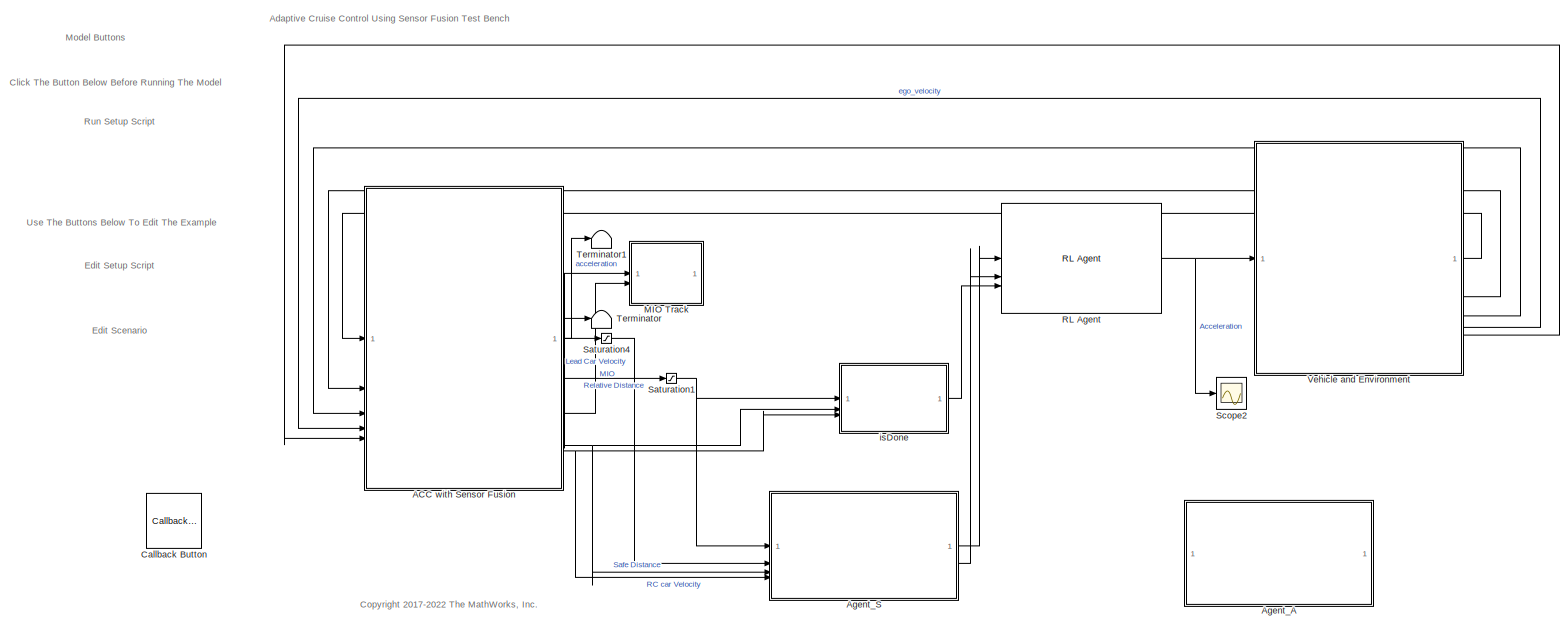
[diagram: root canvas - part 1/1, most of the canvas]
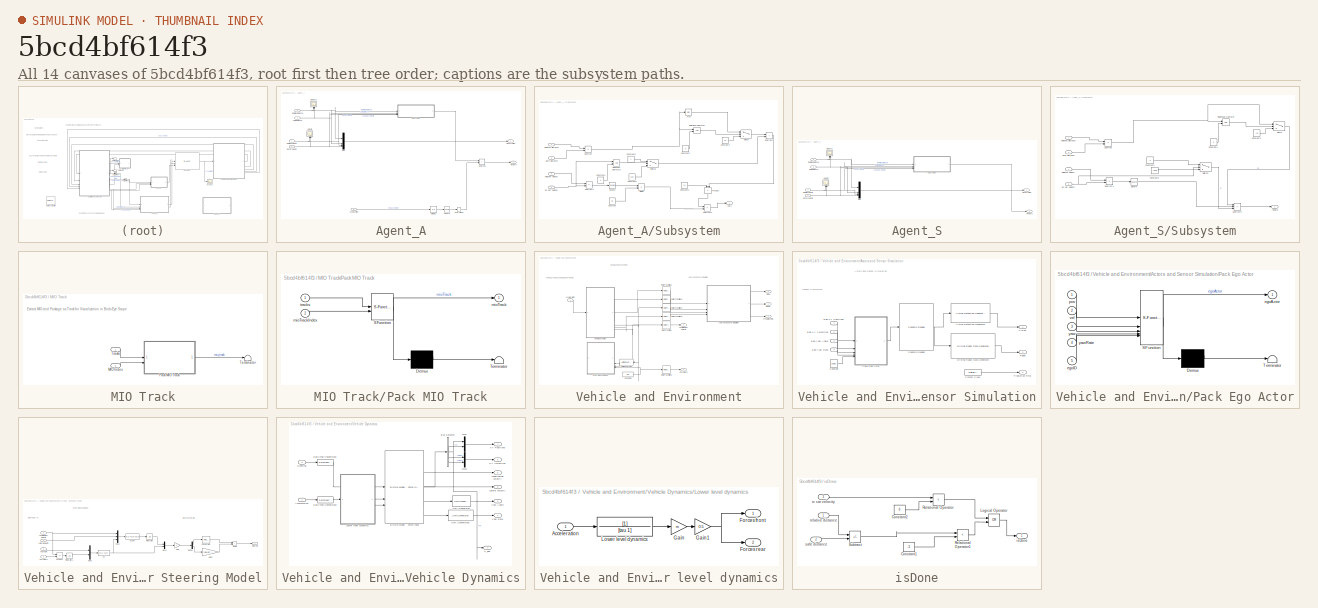
[diagram: thumbnail index - all 14 canvases of the model, root first then tree order]
MODEL slx_5bcd4bf614f3
KIND model
CONFIG AbsTol = auto
CONFIG EnableMultiTasking = off
CONFIG FixedStep = 0.1
CONFIG MaxStep = auto
CONFIG MinStep = auto
CONFIG PostLoadFcn = helperACCSetUp
CONFIG RelTol = 1e-3
CONFIG SampleTimeConstraint = Unconstrained
CONFIG SolverName = FixedStepAuto
CONFIG StartTime = 0.0
CONFIG StopTime = Tf
BLOCK [ModelReference] ACC with Sensor Fusion
  CodeInterface = Top model
  ModelNameDialog = ACCWithSensorFusionMdlRef.slx
  ModelReferenceVersion = 5.10
BLOCK [SubSystem] Agent_A
BLOCK [Inport] Agent_A/Acceleration
  Port = 5
BLOCK [Scope] Agent_A/Distance
  Floating = off
  NameLocation = right
  NumInputPorts = 2
  ScopeSpecificationString = Simulink.scopes.TimeScopeBlockCfg('CurrentConfiguration', extmgr.ConfigurationSet(extmgr.Configuration('Core','General UI',true),extmgr.Configuration('Core','Source UI',true),extmgr.Configuration('Sources','WiredSimulink',true,'DataLoggingVariableName','ScopeData1'),extmgr.Configuration('Visuals','Time Domain',true,'SerializedDisplays',{struct('MinYLimReal','-1.00000','MaxYLimReal','1.00000','YLab...<+1490ch>
BLOCK [Mux] Agent_A/Mux
  DisplayOption = bar
BLOCK [Outport] Agent_A/Observation
BLOCK [Inport] Agent_A/RC car velocity
  Port = 4
BLOCK [Inport] Agent_A/Relative Distance
  Port = 2
BLOCK [Inport] Agent_A/Relative Velocity
BLOCK [Outport] Agent_A/Reward
  Port = 2
BLOCK [Inport] Agent_A/Safe Distance
  Port = 3
BLOCK [Math] Agent_A/Square
  Operator = square
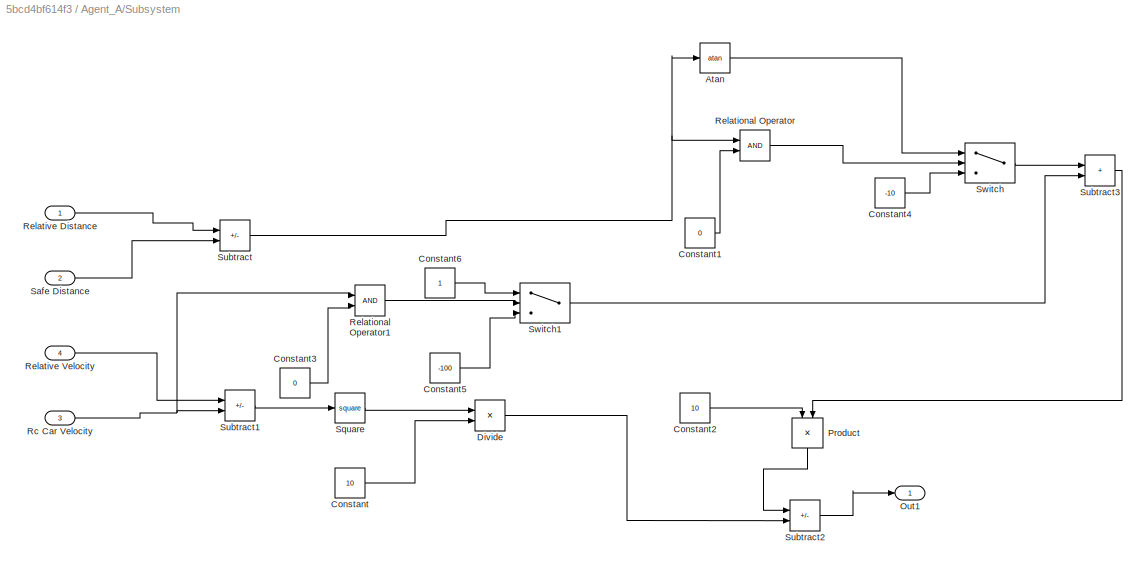
BLOCK [SubSystem] Agent_A/Subsystem
BLOCK [Trigonometry] Agent_A/Subsystem/Atan
  Operator = atan
BLOCK [Constant] Agent_A/Subsystem/Constant
  Value = 10
BLOCK [Constant] Agent_A/Subsystem/Constant1
  Value = 0
BLOCK [Constant] Agent_A/Subsystem/Constant2
  Value = 10
BLOCK [Constant] Agent_A/Subsystem/Constant3
  Value = 0
BLOCK [Constant] Agent_A/Subsystem/Constant4
  Value = -10
BLOCK [Constant] Agent_A/Subsystem/Constant5
  Value = -100
BLOCK [Constant] Agent_A/Subsystem/Constant6
BLOCK [Product] Agent_A/Subsystem/Divide
  Inputs = */
BLOCK [Outport] Agent_A/Subsystem/Out1
BLOCK [Product] Agent_A/Subsystem/Product
  NameLocation = left
BLOCK [Inport] Agent_A/Subsystem/Rc Car Velocity
  Port = 3
BLOCK [RelationalOperator] Agent_A/Subsystem/Relational Operator
  InputSameDT = off
  OutDataTypeStr = boolean
  RndMeth = Simplest
BLOCK [RelationalOperator] Agent_A/Subsystem/Relational Operator1
  InputSameDT = off
  OutDataTypeStr = boolean
  RndMeth = Simplest
BLOCK [Inport] Agent_A/Subsystem/Relative Distance
BLOCK [Inport] Agent_A/Subsystem/Relative Velocity
  Port = 4
BLOCK [Inport] Agent_A/Subsystem/Safe Distance
  Port = 2
BLOCK [Math] Agent_A/Subsystem/Square
  Operator = square
BLOCK [Sum] Agent_A/Subsystem/Subtract
  IconShape = rectangular
  Inputs = +-
BLOCK [Sum] Agent_A/Subsystem/Subtract1
  IconShape = rectangular
  Inputs = +-
BLOCK [Sum] Agent_A/Subsystem/Subtract2
  IconShape = rectangular
  Inputs = +-
BLOCK [Sum] Agent_A/Subsystem/Subtract3
  IconShape = rectangular
BLOCK [Switch] Agent_A/Subsystem/Switch
  Criteria = u2 > Threshold
  InputSameDT = off
  SaturateOnIntegerOverflow = off
BLOCK [Switch] Agent_A/Subsystem/Switch1
  Criteria = u2 > Threshold
  InputSameDT = off
  SaturateOnIntegerOverflow = off
BLOCK [Sum] Agent_A/Subtract2
  IconShape = rectangular
BLOCK [UnaryMinus] Agent_A/Unary Minus
BLOCK [UnitDelay] Agent_A/Unit Delay
  HasFrameUpgradeWarning = on
  SampleTime = -1
BLOCK [Scope] Agent_A/Velocity
  Floating = off
  NameLocation = right
  NumInputPorts = 2
  ScopeSpecificationString = Simulink.scopes.TimeScopeBlockCfg('CurrentConfiguration', extmgr.ConfigurationSet(extmgr.Configuration('Core','General UI',true),extmgr.Configuration('Core','Source UI',true),extmgr.Configuration('Sources','WiredSimulink',true,'DataLoggingVariableName','ScopeData4'),extmgr.Configuration('Visuals','Time Domain',true,'SerializedDisplays',{struct('MinYLimReal','-1.00000','MaxYLimReal','1.00000','YLab...<+1493ch>
BLOCK [SubSystem] Agent_S
BLOCK [Scope] Agent_S/Distance
  Floating = off
  NameLocation = right
  NumInputPorts = 2
  ScopeSpecificationString = Simulink.scopes.TimeScopeBlockCfg('CurrentConfiguration', extmgr.ConfigurationSet(extmgr.Configuration('Core','General UI',true),extmgr.Configuration('Core','Source UI',true),extmgr.Configuration('Sources','WiredSimulink',true,'DataLoggingVariableName','ScopeData1'),extmgr.Configuration('Visuals','Time Domain',true,'SerializedDisplays',{struct('MinYLimReal','-3.37058','MaxYLimReal','81.83526','YLa...<+1495ch>
BLOCK [Mux] Agent_S/Mux
  DisplayOption = bar
BLOCK [Outport] Agent_S/Observation
BLOCK [Inport] Agent_S/RC car velocity
  Port = 4
BLOCK [Inport] Agent_S/Relative Distance
BLOCK [Inport] Agent_S/Relative Velocity
  Port = 2
BLOCK [Outport] Agent_S/Reward
  Port = 2
BLOCK [Inport] Agent_S/Safe Distance
  Port = 3
BLOCK [SubSystem] Agent_S/Subsystem
BLOCK [Constant] Agent_S/Subsystem/Constant1
  Value = 0
BLOCK [Constant] Agent_S/Subsystem/Constant3
  Value = 0
BLOCK [Constant] Agent_S/Subsystem/Constant4
  Value = -15
BLOCK [Constant] Agent_S/Subsystem/Constant5
  Value = -1000
BLOCK [Inport] Agent_S/Subsystem/Rc Car Velocity
  Port = 3
BLOCK [RelationalOperator] Agent_S/Subsystem/Relational Operator
  InputSameDT = off
  OutDataTypeStr = boolean
  RndMeth = Simplest
BLOCK [Inport] Agent_S/Subsystem/Relative Distance
BLOCK [Inport] Agent_S/Subsystem/Relative Velocity
  Port = 4
BLOCK [Inport] Agent_S/Subsystem/Safe Distance
  Port = 2
BLOCK [Math] Agent_S/Subsystem/Square
  Operator = square
BLOCK [Sum] Agent_S/Subsystem/Subtract
  IconShape = rectangular
  Inputs = +-
BLOCK [Sum] Agent_S/Subsystem/Subtract1
  IconShape = rectangular
  Inputs = +-
BLOCK [Sum] Agent_S/Subsystem/Subtract2
  IconShape = rectangular
  Inputs = +-+
BLOCK [Switch] Agent_S/Subsystem/Switch
  Criteria = u2 > Threshold
  InputSameDT = off
  SaturateOnIntegerOverflow = off
BLOCK [Switch] Agent_S/Subsystem/Switch1
  Criteria = u2 > Threshold
  InputSameDT = off
  SaturateOnIntegerOverflow = off
BLOCK [Outport] Agent_S/Subsystem/reward
BLOCK [Scope] Agent_S/Velocity
  Floating = off
  NameLocation = right
  NumInputPorts = 2
  ScopeSpecificationString = Simulink.scopes.TimeScopeBlockCfg('CurrentConfiguration', extmgr.ConfigurationSet(extmgr.Configuration('Core','General UI',true),extmgr.Configuration('Core','Source UI',true),extmgr.Configuration('Sources','WiredSimulink',true,'DataLoggingVariableName','ScopeData4'),extmgr.Configuration('Visuals','Time Domain',true,'SerializedDisplays',{struct('MinYLimReal','-7.78246','MaxYLimReal','19.50434','YLa...<+1497ch>
BLOCK [CallbackButton] Callback Button
  ButtonText = ?
  ClickFcn = exampleName = 'adaptive-cruise-control-with-sensor-fusion.html';\nif license('test','automated_driving_toolbox') && ~isempty(ver('driving'))\n   web(fullfile(docroot,'driving','examples', exampleName));\nelseif license('test','MPC_Toolbox') && ~isempty(ver('mpc'))\n    web(fullfile(docroot,'mpc','ug', exampleName));\nelse\n    web(fullfile('https://www.mathworks.com/help','driving','examples',exampleNam...<+8ch>
BLOCK [SubSystem] MIO Track
BLOCK [Inport] MIO Track/MIO Index
  Port = 2
BLOCK [SubSystem] MIO Track/Pack MIO Track
  ErrorFcn = Stateflow.Translate.translate
  PermitHierarchicalResolution = ExplicitOnly
  SFBlockType = MATLAB Function
  TreatAsAtomicUnit = on
BLOCK [Demux] MIO Track/Pack MIO Track/ Demux 
  Outputs = 1
BLOCK [S-Function] MIO Track/Pack MIO Track/ SFunction 
  EnableBusSupport = on
  FunctionName = sf_sfun
  PortCounts = [2 2]
  SFcnIsStateOwnerBlock = off
  SFunctionDeploymentMode = off
  Tag = Stateflow S-Function 2
BLOCK [Terminator] MIO Track/Pack MIO Track/ Terminator 
BLOCK [Outport] MIO Track/Pack MIO Track/mioTrack
  VectorParamsAs1DForOutWhenUnconnected = off
BLOCK [Inport] MIO Track/Pack MIO Track/mioTrackIndex
  Port = 2
BLOCK [Inport] MIO Track/Pack MIO Track/tracks
BLOCK [Terminator] MIO Track/Terminator
BLOCK [Inport] MIO Track/Tracks
BLOCK [Reference] RL Agent  REF=rllib/RL Agent
  SourceBlock = rllib/RL Agent
  SourceType = RL Agent
BLOCK [Saturate] Saturation1
  LowerLimit = 0
  UpperLimit = 100
BLOCK [Saturate] Saturation4
  LowerLimit = -20
  UpperLimit = 20
BLOCK [Scope] Scope2
  Floating = off
  NumInputPorts = 1
  ScopeSpecificationString = Simulink.scopes.TimeScopeBlockCfg('CurrentConfiguration', extmgr.ConfigurationSet(extmgr.Configuration('Core','General UI',true),extmgr.Configuration('Core','Source UI',true),extmgr.Configuration('Sources','WiredSimulink',true,'DataLoggingVariableName','ScopeData2'),extmgr.Configuration('Visuals','Time Domain',true,'SerializedDisplays',{struct('MinYLimReal','-3.625','MaxYLimReal','2.625','YLabelRe...<+1400ch>
BLOCK [Terminator] Terminator
BLOCK [Terminator] Terminator1
BLOCK [SubSystem] Vehicle and Environment
BLOCK [Inport] Vehicle and Environment/Acceleration
  OutDataTypeStr = double
  PortDimensions = 1
BLOCK [SubSystem] Vehicle and Environment/Actors and Sensor Simulation
BLOCK [Constant] Vehicle and Environment/Actors and Sensor Simulation/Constant
  Value = egoID
BLOCK [Reference] Vehicle and Environment/Actors and Sensor Simulation/Driving Radar Data Generator  REF=drivingscenarioandsensors/Driving Radar Data Generator
  SourceBlock = drivingscenarioandsensors/Driving Radar Data Generator
  SourceType = drivingRadarDataGenerator
BLOCK [Inport] Vehicle and Environment/Actors and Sensor Simulation/Ego XY Positions
BLOCK [Inport] Vehicle and Environment/Actors and Sensor Simulation/Ego XY Velocities
  Port = 2
BLOCK [Inport] Vehicle and Environment/Actors and Sensor Simulation/Ego Yaw Angle
  Port = 3
BLOCK [Inport] Vehicle and Environment/Actors and Sensor Simulation/Ego Yaw Rate
  Port = 4
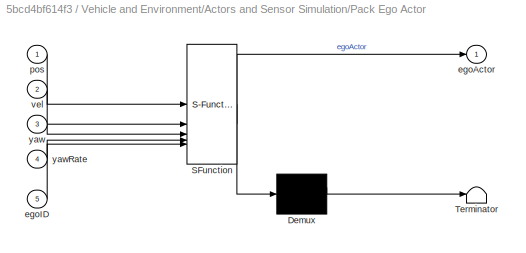
BLOCK [SubSystem] Vehicle and Environment/Actors and Sensor Simulation/Pack Ego Actor
  ErrorFcn = Stateflow.Translate.translate
  PermitHierarchicalResolution = ExplicitOnly
  SFBlockType = MATLAB Function
  TreatAsAtomicUnit = on
BLOCK [Demux] Vehicle and Environment/Actors and Sensor Simulation/Pack Ego Actor/ Demux 
  Outputs = 1
BLOCK [S-Function] Vehicle and Environment/Actors and Sensor Simulation/Pack Ego Actor/ SFunction 
  EnableBusSupport = on
  FunctionName = sf_sfun
  PortCounts = [5 2]
  SFcnIsStateOwnerBlock = off
  SFunctionDeploymentMode = off
  Tag = Stateflow S-Function 5
BLOCK [Terminator] Vehicle and Environment/Actors and Sensor Simulation/Pack Ego Actor/ Terminator 
BLOCK [Outport] Vehicle and Environment/Actors and Sensor Simulation/Pack Ego Actor/egoActor
  VectorParamsAs1DForOutWhenUnconnected = off
BLOCK [Inport] Vehicle and Environment/Actors and Sensor Simulation/Pack Ego Actor/egoID
  Port = 5
BLOCK [Inport] Vehicle and Environment/Actors and Sensor Simulation/Pack Ego Actor/pos
BLOCK [Inport] Vehicle and Environment/Actors and Sensor Simulation/Pack Ego Actor/vel
  Port = 2
BLOCK [Inport] Vehicle and Environment/Actors and Sensor Simulation/Pack Ego Actor/yaw
  Port = 3
BLOCK [Inport] Vehicle and Environment/Actors and Sensor Simulation/Pack Ego Actor/yawRate
  Port = 4
BLOCK [Outport] Vehicle and Environment/Actors and Sensor Simulation/Prediction Time
  Port = 3
  VectorParamsAs1DForOutWhenUnconnected = off
BLOCK [Outport] Vehicle and Environment/Actors and Sensor Simulation/Radar
  Port = 2
  VectorParamsAs1DForOutWhenUnconnected = off
BLOCK [Reference] Vehicle and Environment/Actors and Sensor Simulation/Scenario Reader  REF=drivingscenarioandsensors/Scenario Reader
  SourceBlock = drivingscenarioandsensors/Scenario Reader
  SourceType = driving.scenario.internal.ScenarioReader
BLOCK [DigitalClock] Vehicle and Environment/Actors and Sensor Simulation/System Clock
  SampleTime = Ts
BLOCK [Outport] Vehicle and Environment/Actors and Sensor Simulation/Vision
  VectorParamsAs1DForOutWhenUnconnected = off
BLOCK [Reference] Vehicle and Environment/Actors and Sensor Simulation/Vision Detection Generator  REF=drivingscenarioandsensors/Vision Detection Generator
  SourceBlock = drivingscenarioandsensors/Vision Detection Generator
  SourceType = visionDetectionGenerator
BLOCK [Constant] Vehicle and Environment/Constant1
  Value = 1/R
BLOCK [Outport] Vehicle and Environment/Curvature
  Port = 5
  VectorParamsAs1DForOutWhenUnconnected = off
BLOCK [SubSystem] Vehicle and Environment/Driver Steering Model
BLOCK [Inport] Vehicle and Environment/Driver Steering Model/Curvature
  Port = 4
BLOCK [Demux] Vehicle and Environment/Driver Steering Model/Demux
  Outputs = 2
BLOCK [Gain] Vehicle and Environment/Driver Steering Model/Gain
  Gain = -1
BLOCK [Gain] Vehicle and Environment/Driver Steering Model/Gain2
  Gain = yawerr_gain
BLOCK [Integrator] Vehicle and Environment/Driver Steering Model/Integrator
BLOCK [Integrator] Vehicle and Environment/Driver Steering Model/Integrator1
BLOCK [Inport] Vehicle and Environment/Driver Steering Model/Lateral Velocity
BLOCK [Inport] Vehicle and Environment/Driver Steering Model/Longitudinal Velocity
  Port = 2
BLOCK [Mux] Vehicle and Environment/Driver Steering Model/Mux1
  DisplayOption = bar
  Inputs = 3
BLOCK [Mux] Vehicle and Environment/Driver Steering Model/Mux2
  DisplayOption = bar
  Inputs = 2
BLOCK [Mux] Vehicle and Environment/Driver Steering Model/Mux3
  DisplayOption = bar
  Inputs = 2
BLOCK [Reference] Vehicle and Environment/Driver Steering Model/PID Controller  REF=slpidlib/PID Controller
  SourceBlock = slpidlib/PID Controller
  SourceType = PID 1dof
BLOCK [Product] Vehicle and Environment/Driver Steering Model/Product
BLOCK [Outport] Vehicle and Environment/Driver Steering Model/Steering
  VectorParamsAs1DForOutWhenUnconnected = off
BLOCK [Sum] Vehicle and Environment/Driver Steering Model/Sum5
  IconShape = rectangular
BLOCK [Inport] Vehicle and Environment/Driver Steering Model/Yaw Angle
  Port = 3
  Unit = rad
BLOCK [Fcn] Vehicle and Environment/Driver Steering Model/e1dot
  Expr = u(1)*u(3)+u(2)
BLOCK [Fcn] Vehicle and Environment/Driver Steering Model/e2
  Expr = u(1)-u(2)
BLOCK [Outport] Vehicle and Environment/Longitudinal Velocity
  Port = 4
  VectorParamsAs1DForOutWhenUnconnected = off
BLOCK [Outport] Vehicle and Environment/Prediction Time
  Port = 3
  VectorParamsAs1DForOutWhenUnconnected = off
BLOCK [Outport] Vehicle and Environment/Radar
  Port = 2
  VectorParamsAs1DForOutWhenUnconnected = off
BLOCK [RateTransition] Vehicle and Environment/Rate Transition
  OutPortSampleTime = Ts
BLOCK [RateTransition] Vehicle and Environment/Rate Transition1
  OutPortSampleTime = Ts
BLOCK [RateTransition] Vehicle and Environment/Rate Transition2
  OutPortSampleTime = Ts
BLOCK [RateTransition] Vehicle and Environment/Rate Transition3
  OutPortSampleTime = Ts
BLOCK [RateTransition] Vehicle and Environment/Rate Transition4
  OutPortSampleTime = Ts
BLOCK [RateTransition] Vehicle and Environment/Rate Transition5
  OutPortSampleTime = Ts
BLOCK [UnitConversion] Vehicle and Environment/Unit Conversion
  NameLocation = top
BLOCK [SubSystem] Vehicle and Environment/Vehicle Dynamics
  VariantControl = Variant2
BLOCK [Inport] Vehicle and Environment/Vehicle Dynamics/Acceleration
  Unit = m/s^2
BLOCK [Reference] Vehicle and Environment/Vehicle Dynamics/Bicycle Model - Force Input  REF=autolibshared/Bicycle Model - Force Input
  SourceBlock = autolibshared/Bicycle Model - Force Input
  SourceType = Vehicle Body 3DOF Lateral
BLOCK [BusSelector] Vehicle and Environment/Vehicle Dynamics/Bus Selector
  OutputSignals = InertFrm.FrntAxl.Disp.X,InertFrm.FrntAxl.Disp.Y,InertFrm.FrntAxl.Vel.Xdot,InertFrm.FrntAxl.Vel.Ydot
BLOCK [DataTypeConversion] Vehicle and Environment/Vehicle Dynamics/Data Type Conversion1
  RndMeth = Floor
  SaturateOnIntegerOverflow = off
BLOCK [DataTypeConversion] Vehicle and Environment/Vehicle Dynamics/Data Type Conversion2
  RndMeth = Floor
  SaturateOnIntegerOverflow = off
BLOCK [Outport] Vehicle and Environment/Vehicle Dynamics/Lateral velocity
  Port = 6
  VectorParamsAs1DForOutWhenUnconnected = off
BLOCK [Outport] Vehicle and Environment/Vehicle Dynamics/Longitudinal velocity
  Port = 5
  VectorParamsAs1DForOutWhenUnconnected = off
BLOCK [SubSystem] Vehicle and Environment/Vehicle Dynamics/Lower level dynamics
BLOCK [Inport] Vehicle and Environment/Vehicle Dynamics/Lower level dynamics/Acceleration
BLOCK [Outport] Vehicle and Environment/Vehicle Dynamics/Lower level dynamics/Forces front
  VectorParamsAs1DForOutWhenUnconnected = off
BLOCK [Outport] Vehicle and Environment/Vehicle Dynamics/Lower level dynamics/Forces rear
  Port = 2
  VectorParamsAs1DForOutWhenUnconnected = off
BLOCK [Gain] Vehicle and Environment/Vehicle Dynamics/Lower level dynamics/Gain
  Gain = m
BLOCK [Gain] Vehicle and Environment/Vehicle Dynamics/Lower level dynamics/Gain1
  Gain = 0.5
BLOCK [TransferFcn] Vehicle and Environment/Vehicle Dynamics/Lower level dynamics/Lower level dynamics
  Denominator = [tau 1]
BLOCK [Mux] Vehicle and Environment/Vehicle Dynamics/Mux
  DisplayOption = bar
  Inputs = 2
BLOCK [Mux] Vehicle and Environment/Vehicle Dynamics/Mux1
  DisplayOption = bar
  Inputs = 2
BLOCK [Inport] Vehicle and Environment/Vehicle Dynamics/Steering
  Port = 2
  Unit = rad
BLOCK [UnitConversion] Vehicle and Environment/Vehicle Dynamics/Unit Conversion
BLOCK [UnitConversion] Vehicle and Environment/Vehicle Dynamics/Unit Conversion1
BLOCK [Outport] Vehicle and Environment/Vehicle Dynamics/XY Positions
  Unit = m
  VectorParamsAs1DForOutWhenUnconnected = off
BLOCK [Outport] Vehicle and Environment/Vehicle Dynamics/XY Velocities
  Port = 2
  Unit = m/s
  VectorParamsAs1DForOutWhenUnconnected = off
BLOCK [Outport] Vehicle and Environment/Vehicle Dynamics/X_pos
  Port = 7
  Unit = degree/s
  VectorParamsAs1DForOutWhenUnconnected = off
BLOCK [Outport] Vehicle and Environment/Vehicle Dynamics/Yaw Angle
  Port = 3
  Unit = deg
  VectorParamsAs1DForOutWhenUnconnected = off
BLOCK [Outport] Vehicle and Environment/Vehicle Dynamics/Yaw Rate
  Port = 4
  Unit = degree/s
  VectorParamsAs1DForOutWhenUnconnected = off
BLOCK [Outport] Vehicle and Environment/Vision
  VectorParamsAs1DForOutWhenUnconnected = off
BLOCK [SubSystem] isDone
BLOCK [Constant] isDone/Constant1
  Value = -5
BLOCK [Constant] isDone/Constant2
  Value = 0
BLOCK [Logic] isDone/Logical Operator
  AllPortsSameDT = off
  Operator = OR
  OutDataTypeStr = boolean
BLOCK [RelationalOperator] isDone/Relational Operator
  InputSameDT = off
  Operator = <
  OutDataTypeStr = boolean
  RndMeth = Simplest
BLOCK [RelationalOperator] isDone/Relational Operator1
  InputSameDT = off
  Operator = <
  OutDataTypeStr = boolean
  RndMeth = Simplest
BLOCK [Sum] isDone/Subtract
  IconShape = rectangular
  Inputs = +-
BLOCK [Outport] isDone/isDone
BLOCK [Inport] isDone/rc car velocity
  Port = 3
BLOCK [Inport] isDone/relative distance
BLOCK [Inport] isDone/safe distance
  Port = 2
ANNOTATION (root): Edit Scenario
ANNOTATION (root): Edit Setup Script
ANNOTATION (root): Run Setup Script
ANNOTATION (root): Adaptive Cruise Control Using Sensor Fusion Test Bench
ANNOTATION (root): Click The Button Below Before Running The Model
ANNOTATION (root): <copyright redacted>
ANNOTATION (root): Model Buttons
ANNOTATION (root): Use The Buttons Below To Edit The Example
ANNOTATION MIO Track: Extract MIO and Package as Track for Visualization in Birds Eye Scope
ANNOTATION Vehicle and Environment: Vehicle and Environment
ANNOTATION Vehicle and Environment: Actors and Sensor Simulation
ANNOTATION Vehicle and Environment: Vehicle Dynamics and Global Coordinates
ANNOTATION Vehicle and Environment/Actors and Sensor Simulation: Actors and Sensor Simulation
ANNOTATION Vehicle and Environment/Actors and Sensor Simulation: Sensor Simulation
ANNOTATION Vehicle and Environment/Driver Steering Model: Driver Steering Model
ANNOTATION Vehicle and Environment/Driver Steering Model: Steering Controller
ANNOTATION Vehicle and Environment/Driver Steering Model: Steering Error
LINE ACC with Sensor Fusion:1 -> Terminator1:1
NET ACC with Sensor Fusion:2 -> MIO Track:1, Terminator:1
LINE ACC with Sensor Fusion:3 -> MIO Track:2
LINE ACC with Sensor Fusion:4 -> Saturation4:1
LINE ACC with Sensor Fusion:5 -> Saturation1:1
NET ACC with Sensor Fusion:6 -> Agent_S:3, isDone:2
NET ACC with Sensor Fusion:7 -> Agent_S:4, isDone:3
LINE Agent_A/Acceleration:1 -> Agent_A/Unit Delay:1
LINE Agent_A/Mux:1 -> Agent_A/Observation:1
NET Agent_A/RC car velocity:1 -> Agent_A/Mux:4, Agent_A/Subsystem:3, Agent_A/Velocity:2
NET Agent_A/Relative Distance:1 -> Agent_A/Distance:1, Agent_A/Mux:1, Agent_A/Subsystem:1
NET Agent_A/Relative Velocity:1 -> Agent_A/Mux:3, Agent_A/Subsystem:4, Agent_A/Velocity:1
NET Agent_A/Safe Distance:1 -> Agent_A/Distance:2, Agent_A/Mux:2, Agent_A/Subsystem:2
LINE Agent_A/Square:1 -> Agent_A/Unary Minus:1
LINE Agent_A/Subsystem/Atan:1 -> Agent_A/Subsystem/Switch:1
LINE Agent_A/Subsystem/Constant1:1 -> Agent_A/Subsystem/Relational Operator:2
LINE Agent_A/Subsystem/Constant2:1 -> Agent_A/Subsystem/Product:1
LINE Agent_A/Subsystem/Constant3:1 -> Agent_A/Subsystem/Relational Operator1:2
LINE Agent_A/Subsystem/Constant4:1 -> Agent_A/Subsystem/Switch:3
LINE Agent_A/Subsystem/Constant5:1 -> Agent_A/Subsystem/Switch1:3
LINE Agent_A/Subsystem/Constant6:1 -> Agent_A/Subsystem/Switch1:1
LINE Agent_A/Subsystem/Constant:1 -> Agent_A/Subsystem/Divide:2
LINE Agent_A/Subsystem/Divide:1 -> Agent_A/Subsystem/Subtract2:2
LINE Agent_A/Subsystem/Product:1 -> Agent_A/Subsystem/Subtract2:1
NET Agent_A/Subsystem/Rc Car Velocity:1 -> Agent_A/Subsystem/Relational Operator1:1, Agent_A/Subsystem/Subtract1:2
LINE Agent_A/Subsystem/Relational Operator1:1 -> Agent_A/Subsystem/Switch1:2
LINE Agent_A/Subsystem/Relational Operator:1 -> Agent_A/Subsystem/Switch:2
LINE Agent_A/Subsystem/Relative Distance:1 -> Agent_A/Subsystem/Subtract:1
LINE Agent_A/Subsystem/Relative Velocity:1 -> Agent_A/Subsystem/Subtract1:1
LINE Agent_A/Subsystem/Safe Distance:1 -> Agent_A/Subsystem/Subtract:2
LINE Agent_A/Subsystem/Square:1 -> Agent_A/Subsystem/Divide:1
LINE Agent_A/Subsystem/Subtract1:1 -> Agent_A/Subsystem/Square:1
LINE Agent_A/Subsystem/Subtract2:1 -> Agent_A/Subsystem/Out1:1
LINE Agent_A/Subsystem/Subtract3:1 -> Agent_A/Subsystem/Product:2
NET Agent_A/Subsystem/Subtract:1 -> Agent_A/Subsystem/Atan:1, Agent_A/Subsystem/Relational Operator:1
LINE Agent_A/Subsystem/Switch1:1 -> Agent_A/Subsystem/Subtract3:2
LINE Agent_A/Subsystem/Switch:1 -> Agent_A/Subsystem/Subtract3:1
LINE Agent_A/Subsystem:1 -> Agent_A/Subtract2:1
LINE Agent_A/Subtract2:1 -> Agent_A/Reward:1
LINE Agent_A/Unary Minus:1 -> Agent_A/Subtract2:2
LINE Agent_A/Unit Delay:1 -> Agent_A/Square:1
LINE Agent_S/Mux:1 -> Agent_S/Observation:1
NET Agent_S/RC car velocity:1 -> Agent_S/Mux:4, Agent_S/Subsystem:3, Agent_S/Velocity:2
NET Agent_S/Relative Distance:1 -> Agent_S/Distance:1, Agent_S/Mux:1, Agent_S/Subsystem:1
NET Agent_S/Relative Velocity:1 -> Agent_S/Mux:3, Agent_S/Subsystem:4, Agent_S/Velocity:1
NET Agent_S/Safe Distance:1 -> Agent_S/Distance:2, Agent_S/Mux:2, Agent_S/Subsystem:2
LINE Agent_S/Subsystem/Constant1:1 -> Agent_S/Subsystem/Relational Operator:2
LINE Agent_S/Subsystem/Constant3:1 -> Agent_S/Subsystem/Switch1:1
LINE Agent_S/Subsystem/Constant4:1 -> Agent_S/Subsystem/Switch:3
LINE Agent_S/Subsystem/Constant5:1 -> Agent_S/Subsystem/Switch1:3
NET Agent_S/Subsystem/Rc Car Velocity:1 -> Agent_S/Subsystem/Subtract1:2, Agent_S/Subsystem/Switch1:2
LINE Agent_S/Subsystem/Relational Operator:1 -> Agent_S/Subsystem/Switch:2
LINE Agent_S/Subsystem/Relative Distance:1 -> Agent_S/Subsystem/Subtract:1
LINE Agent_S/Subsystem/Relative Velocity:1 -> Agent_S/Subsystem/Subtract1:1
LINE Agent_S/Subsystem/Safe Distance:1 -> Agent_S/Subsystem/Subtract:2
LINE Agent_S/Subsystem/Square:1 -> Agent_S/Subsystem/Subtract2:2
LINE Agent_S/Subsystem/Subtract1:1 -> Agent_S/Subsystem/Square:1
LINE Agent_S/Subsystem/Subtract2:1 -> Agent_S/Subsystem/reward:1
NET Agent_S/Subsystem/Subtract:1 -> Agent_S/Subsystem/Relational Operator:1, Agent_S/Subsystem/Switch:1
LINE Agent_S/Subsystem/Switch1:1 -> Agent_S/Subsystem/Subtract2:3
LINE Agent_S/Subsystem/Switch:1 -> Agent_S/Subsystem/Subtract2:1
LINE Agent_S/Subsystem:1 -> Agent_S/Reward:1
LINE Agent_S:1 -> RL Agent:1
LINE Agent_S:2 -> RL Agent:2
LINE MIO Track/MIO Index:1 -> MIO Track/Pack MIO Track:2
LINE MIO Track/Pack MIO Track:1 -> MIO Track/Terminator:1
LINE MIO Track/Tracks:1 -> MIO Track/Pack MIO Track:1
NET RL Agent:1 -> Scope2:1, Vehicle and Environment:1
NET Saturation1:1 -> Agent_S:1, isDone:1
LINE Saturation4:1 -> Agent_S:2
LINE Vehicle and Environment/Acceleration:1 -> Vehicle and Environment/Vehicle Dynamics:1
LINE Vehicle and Environment/Actors and Sensor Simulation/Constant:1 -> Vehicle and Environment/Actors and Sensor Simulation/Pack Ego Actor:5
LINE Vehicle and Environment/Actors and Sensor Simulation/Driving Radar Data Generator:1 -> Vehicle and Environment/Actors and Sensor Simulation/Radar:1
LINE Vehicle and Environment/Actors and Sensor Simulation/Ego XY Positions:1 -> Vehicle and Environment/Actors and Sensor Simulation/Pack Ego Actor:1
LINE Vehicle and Environment/Actors and Sensor Simulation/Ego XY Velocities:1 -> Vehicle and Environment/Actors and Sensor Simulation/Pack Ego Actor:2
LINE Vehicle and Environment/Actors and Sensor Simulation/Ego Yaw Angle:1 -> Vehicle and Environment/Actors and Sensor Simulation/Pack Ego Actor:3
LINE Vehicle and Environment/Actors and Sensor Simulation/Ego Yaw Rate:1 -> Vehicle and Environment/Actors and Sensor Simulation/Pack Ego Actor:4
LINE Vehicle and Environment/Actors and Sensor Simulation/Pack Ego Actor:1 -> Vehicle and Environment/Actors and Sensor Simulation/Scenario Reader:1
NET Vehicle and Environment/Actors and Sensor Simulation/Scenario Reader:1 -> Vehicle and Environment/Actors and Sensor Simulation/Driving Radar Data Generator:1, Vehicle and Environment/Actors and Sensor Simulation/Vision Detection Generator:1
LINE Vehicle and Environment/Actors and Sensor Simulation/System Clock:1 -> Vehicle and Environment/Actors and Sensor Simulation/Prediction Time:1
LINE Vehicle and Environment/Actors and Sensor Simulation/Vision Detection Generator:1 -> Vehicle and Environment/Actors and Sensor Simulation/Vision:1
LINE Vehicle and Environment/Actors and Sensor Simulation:1 -> Vehicle and Environment/Vision:1
LINE Vehicle and Environment/Actors and Sensor Simulation:2 -> Vehicle and Environment/Radar:1
LINE Vehicle and Environment/Actors and Sensor Simulation:3 -> Vehicle and Environment/Prediction Time:1
NET Vehicle and Environment/Constant1:1 -> Vehicle and Environment/Driver Steering Model:4, Vehicle and Environment/Rate Transition2:1
LINE Vehicle and Environment/Driver Steering Model/Curvature:1 -> Vehicle and Environment/Driver Steering Model/Product:2
LINE Vehicle and Environment/Driver Steering Model/Demux:1 -> Vehicle and Environment/Driver Steering Model/PID Controller:1
LINE Vehicle and Environment/Driver Steering Model/Demux:2 -> Vehicle and Environment/Driver Steering Model/Gain2:1
LINE Vehicle and Environment/Driver Steering Model/Gain2:1 -> Vehicle and Environment/Driver Steering Model/Sum5:2
LINE Vehicle and Environment/Driver Steering Model/Gain:1 -> Vehicle and Environment/Driver Steering Model/Demux:1
LINE Vehicle and Environment/Driver Steering Model/Integrator1:1 -> Vehicle and Environment/Driver Steering Model/Mux2:2
LINE Vehicle and Environment/Driver Steering Model/Integrator:1 -> Vehicle and Environment/Driver Steering Model/Mux3:1
LINE Vehicle and Environment/Driver Steering Model/Lateral Velocity:1 -> Vehicle and Environment/Driver Steering Model/Mux1:2
NET Vehicle and Environment/Driver Steering Model/Longitudinal Velocity:1 -> Vehicle and Environment/Driver Steering Model/Mux1:1, Vehicle and Environment/Driver Steering Model/Product:1
LINE Vehicle and Environment/Driver Steering Model/Mux1:1 -> Vehicle and Environment/Driver Steering Model/e1dot:1
LINE Vehicle and Environment/Driver Steering Model/Mux2:1 -> Vehicle and Environment/Driver Steering Model/e2:1
LINE Vehicle and Environment/Driver Steering Model/Mux3:1 -> Vehicle and Environment/Driver Steering Model/Gain:1
LINE Vehicle and Environment/Driver Steering Model/PID Controller:1 -> Vehicle and Environment/Driver Steering Model/Sum5:1
LINE Vehicle and Environment/Driver Steering Model/Product:1 -> Vehicle and Environment/Driver Steering Model/Integrator1:1
LINE Vehicle and Environment/Driver Steering Model/Sum5:1 -> Vehicle and Environment/Driver Steering Model/Steering:1
LINE Vehicle and Environment/Driver Steering Model/Yaw Angle:1 -> Vehicle and Environment/Driver Steering Model/Mux2:1
LINE Vehicle and Environment/Driver Steering Model/e1dot:1 -> Vehicle and Environment/Driver Steering Model/Integrator:1
NET Vehicle and Environment/Driver Steering Model/e2:1 -> Vehicle and Environment/Driver Steering Model/Mux1:3, Vehicle and Environment/Driver Steering Model/Mux3:2
LINE Vehicle and Environment/Rate Transition1:1 -> Vehicle and Environment/Actors and Sensor Simulation:1
LINE Vehicle and Environment/Rate Transition2:1 -> Vehicle and Environment/Curvature:1
LINE Vehicle and Environment/Rate Transition3:1 -> Vehicle and Environment/Actors and Sensor Simulation:2
LINE Vehicle and Environment/Rate Transition4:1 -> Vehicle and Environment/Actors and Sensor Simulation:3
LINE Vehicle and Environment/Rate Transition5:1 -> Vehicle and Environment/Actors and Sensor Simulation:4
LINE Vehicle and Environment/Rate Transition:1 -> Vehicle and Environment/Longitudinal Velocity:1
LINE Vehicle and Environment/Unit Conversion:1 -> Vehicle and Environment/Driver Steering Model:3
LINE Vehicle and Environment/Vehicle Dynamics/Acceleration:1 -> Vehicle and Environment/Vehicle Dynamics/Data Type Conversion2:1
LINE Vehicle and Environment/Vehicle Dynamics/Bicycle Model - Force Input:1 -> Vehicle and Environment/Vehicle Dynamics/Bus Selector:1
LINE Vehicle and Environment/Vehicle Dynamics/Bicycle Model - Force Input:2 -> Vehicle and Environment/Vehicle Dynamics/Longitudinal velocity:1
LINE Vehicle and Environment/Vehicle Dynamics/Bicycle Model - Force Input:3 -> Vehicle and Environment/Vehicle Dynamics/Lateral velocity:1
LINE Vehicle and Environment/Vehicle Dynamics/Bicycle Model - Force Input:4 -> Vehicle and Environment/Vehicle Dynamics/Unit Conversion:1
LINE Vehicle and Environment/Vehicle Dynamics/Bicycle Model - Force Input:5 -> Vehicle and Environment/Vehicle Dynamics/Unit Conversion1:1
NET Vehicle and Environment/Vehicle Dynamics/Bus Selector:1 -> Vehicle and Environment/Vehicle Dynamics/Mux:1, Vehicle and Environment/Vehicle Dynamics/X_pos:1
LINE Vehicle and Environment/Vehicle Dynamics/Bus Selector:2 -> Vehicle and Environment/Vehicle Dynamics/Mux:2
LINE Vehicle and Environment/Vehicle Dynamics/Bus Selector:3 -> Vehicle and Environment/Vehicle Dynamics/Mux1:1
LINE Vehicle and Environment/Vehicle Dynamics/Bus Selector:4 -> Vehicle and Environment/Vehicle Dynamics/Mux1:2
LINE Vehicle and Environment/Vehicle Dynamics/Data Type Conversion1:1 -> Vehicle and Environment/Vehicle Dynamics/Bicycle Model - Force Input:1
LINE Vehicle and Environment/Vehicle Dynamics/Data Type Conversion2:1 -> Vehicle and Environment/Vehicle Dynamics/Lower level dynamics:1
LINE Vehicle and Environment/Vehicle Dynamics/Lower level dynamics/Acceleration:1 -> Vehicle and Environment/Vehicle Dynamics/Lower level dynamics/Lower level dynamics:1
NET Vehicle and Environment/Vehicle Dynamics/Lower level dynamics/Gain1:1 -> Vehicle and Environment/Vehicle Dynamics/Lower level dynamics/Forces front:1, Vehicle and Environment/Vehicle Dynamics/Lower level dynamics/Forces rear:1
LINE Vehicle and Environment/Vehicle Dynamics/Lower level dynamics/Gain:1 -> Vehicle and Environment/Vehicle Dynamics/Lower level dynamics/Gain1:1
LINE Vehicle and Environment/Vehicle Dynamics/Lower level dynamics/Lower level dynamics:1 -> Vehicle and Environment/Vehicle Dynamics/Lower level dynamics/Gain:1
LINE Vehicle and Environment/Vehicle Dynamics/Lower level dynamics:1 -> Vehicle and Environment/Vehicle Dynamics/Bicycle Model - Force Input:2
LINE Vehicle and Environment/Vehicle Dynamics/Lower level dynamics:2 -> Vehicle and Environment/Vehicle Dynamics/Bicycle Model - Force Input:3
LINE Vehicle and Environment/Vehicle Dynamics/Mux1:1 -> Vehicle and Environment/Vehicle Dynamics/XY Velocities:1
LINE Vehicle and Environment/Vehicle Dynamics/Mux:1 -> Vehicle and Environment/Vehicle Dynamics/XY Positions:1
LINE Vehicle and Environment/Vehicle Dynamics/Steering:1 -> Vehicle and Environment/Vehicle Dynamics/Data Type Conversion1:1
LINE Vehicle and Environment/Vehicle Dynamics/Unit Conversion1:1 -> Vehicle and Environment/Vehicle Dynamics/Yaw Rate:1
LINE Vehicle and Environment/Vehicle Dynamics/Unit Conversion:1 -> Vehicle and Environment/Vehicle Dynamics/Yaw Angle:1
LINE Vehicle and Environment/Vehicle Dynamics:1 -> Vehicle and Environment/Rate Transition1:1
LINE Vehicle and Environment/Vehicle Dynamics:2 -> Vehicle and Environment/Rate Transition3:1
NET Vehicle and Environment/Vehicle Dynamics:3 -> Vehicle and Environment/Rate Transition4:1, Vehicle and Environment/Unit Conversion:1
LINE Vehicle and Environment/Vehicle Dynamics:4 -> Vehicle and Environment/Rate Transition5:1
NET Vehicle and Environment/Vehicle Dynamics:5 -> Vehicle and Environment/Driver Steering Model:2, Vehicle and Environment/Rate Transition:1
LINE Vehicle and Environment:1 -> ACC with Sensor Fusion:1
LINE Vehicle and Environment:2 -> ACC with Sensor Fusion:2
LINE Vehicle and Environment:3 -> ACC with Sensor Fusion:3
LINE Vehicle and Environment:4 -> ACC with Sensor Fusion:4
LINE Vehicle and Environment:5 -> ACC with Sensor Fusion:5
LINE isDone/Constant1:1 -> isDone/Relational Operator1:2
LINE isDone/Constant2:1 -> isDone/Relational Operator:2
LINE isDone/Logical Operator:1 -> isDone/isDone:1
LINE isDone/Relational Operator1:1 -> isDone/Logical Operator:2
LINE isDone/Relational Operator:1 -> isDone/Logical Operator:1
LINE isDone/Subtract:1 -> isDone/Relational Operator1:1
LINE isDone/rc car velocity:1 -> isDone/Relational Operator:1
LINE isDone/relative distance:1 -> isDone/Subtract:1
LINE isDone/safe distance:1 -> isDone/Subtract:2
LINE isDone:1 -> RL Agent:3
note: NET lines group one-source signal fan-out (src -> all destinations, sorted); 1:1 wires keep LINE
CHART MIO Track/Pack MIO Track states=1 transitions=1
  STATE_LABEL 'eML_blk_kernel()'
  STATE_LABEL 'SCRIPT:\nfunction mioTrack = fcn(tracks, mioTrackIndex)\n% Extract MIO track and package for visualization in Birds Eye Scope\n\nmioTrack = tracks;\n\nif mioTrackIndex > 0\n    % First track represents MIO\n    mioTrack.NumTracks = 1;\n    mioTrack.Tracks(1) = tracks.Tracks(mioTrackIndex);\nelse\n    % No valid MIO track\n    mioTrack.NumTracks = 0;\nend\n'
CHART Vehicle and Environment/Actors and Sensor Simulation/Pack Ego Actor states=1 transitions=1
  STATE_LABEL 'eML_blk_kernel()'
  STATE_LABEL "SCRIPT:\nfunction egoActor = packEgo(pos,vel,yaw,yawRate,egoID)\n% Pack ego information into a single ego actor bus\n%\n% Imoprtant note:\n% Output is a bus of type BusActorsActors. This is the same bus used by the\n% Scenario Reader to output an individual actor. If you change the\n% output bus name of Scenario Reader, change the output bus name here\n% as well by clicking on 'Edit Data' in the menu abov...<+225ch>"
CHART  states=0 transitions=0
CHART  states=0 transitions=0
